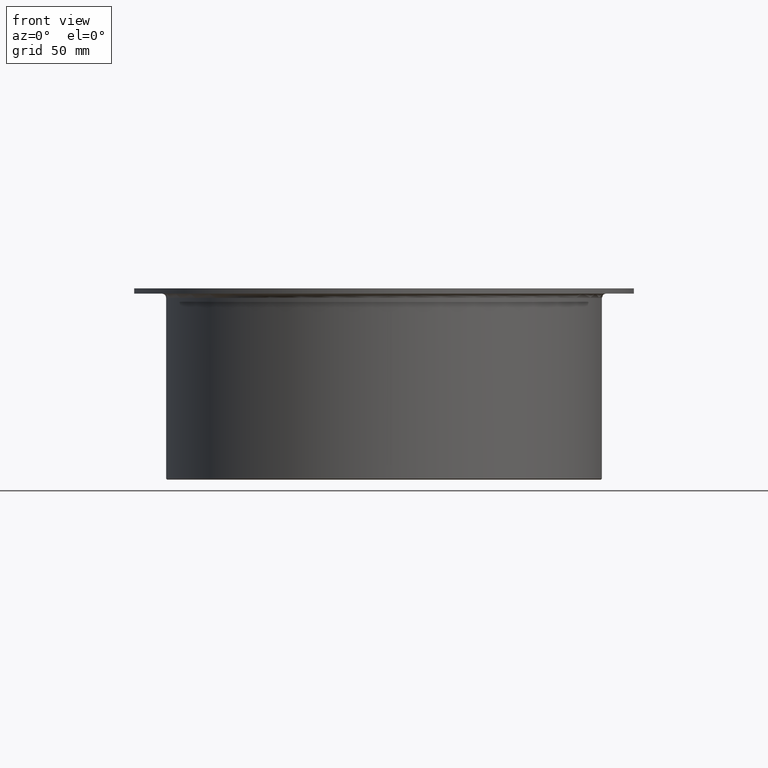
[diagram: clean part render]
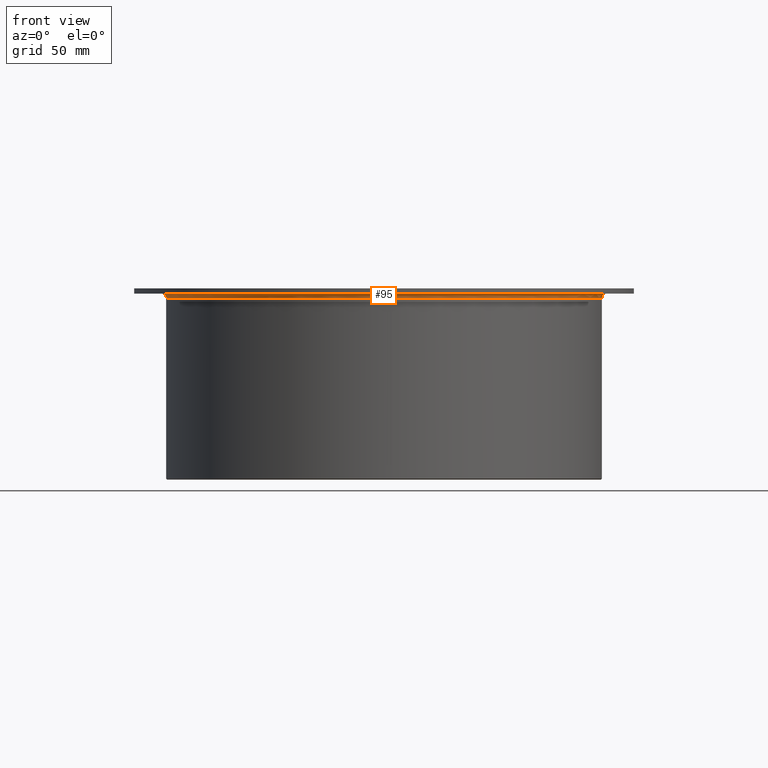
[diagram: same view with one face highlighted and labeled with its STEP entity id]
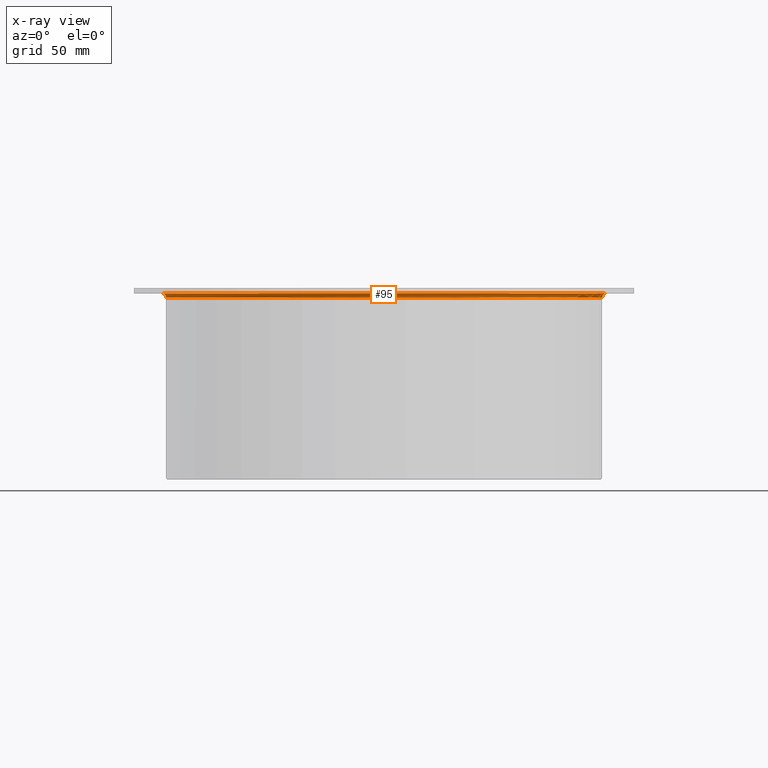
[diagram: x-ray of the same camera — body ghosted, the highlighted face saturated]
A machine part, front view. The second image highlights one B-rep face of the part: STEP entity #95.
The next image is the same camera in x-ray: the body ghosted, the highlighted face saturated — about 0% of this face is hidden behind the body in this view.
In plain terms, the highlighted toroidal blend (fillet) surface has major radius 104.5 mm and minor (blend) radius 2 mm.
Its self-contained STEP definition (entity closure, byte-faithful):
#95=ADVANCED_FACE('',(#142),#143,.F.);
#142=FACE_OUTER_BOUND('',#194,.T.);
#143=TOROIDAL_SURFACE('',#195,104.5,2.0);
#194=EDGE_LOOP('',(#360,#361,#362,#363));
#195=AXIS2_PLACEMENT_3D('',#364,#365,#366);
#360=ORIENTED_EDGE('',*,*,#436,.T.);
#361=ORIENTED_EDGE('',*,*,#470,.F.);
#362=ORIENTED_EDGE('',*,*,#471,.T.);
#363=ORIENTED_EDGE('',*,*,#428,.T.);
#364=CARTESIAN_POINT('',(2.22044604925031E-015,-3.71059565656411E-015,85.5));
#365=DIRECTION('',(-1.16269284789061E-031,-6.12323399573677E-017,1.0));
#366=DIRECTION('',(-1.0,1.89882151931499E-015,0.0));
#428=EDGE_CURVE('',#507,#505,#508,.T.);
#436=EDGE_CURVE('',#505,#520,#521,.T.);
#470=EDGE_CURVE('',#570,#520,#572,.T.);
#471=EDGE_CURVE('',#570,#507,#573,.T.);
#505=VERTEX_POINT('',#617);
#507=VERTEX_POINT('',#620);
#508=CIRCLE('',#621,102.5);
#520=VERTEX_POINT('',#649);
#521=CIRCLE('',#650,2.0);
#570=VERTEX_POINT('',#755);
#572=CIRCLE('',#758,104.5);
#573=B_SPLINE_CURVE_WITH_KNOTS('',3,(#759,#760,#761,#762,#763,#764,#765,#766,#767,#768,#769,#770,#771,#772),.UNSPECIFIED.,.F.,.F.,(4,2,2,2,2,2,4),(0.222831549806843,0.298249864521166,0.373687788760013,0.448602581092316,0.52286140491384,0.596569437734995,0.670277470556151),.UNSPECIFIED.);
#617=CARTESIAN_POINT('',(102.5,-2.1089243107761E-013,85.5));
#620=CARTESIAN_POINT('',(-102.421234679189,-4.0175473600821,85.5));
#621=AXIS2_PLACEMENT_3D('',#807,#808,#809);
#649=CARTESIAN_POINT('',(104.5,-2.15057468155985E-013,87.5));
#650=AXIS2_PLACEMENT_3D('',#822,#823,#824);
#755=CARTESIAN_POINT('',(-104.405661574246,-4.43935031778063,87.5));
#758=AXIS2_PLACEMENT_3D('',#889,#890,#891);
#759=CARTESIAN_POINT('',(-105.16853480014,-4.6015040276666,87.3461862916365));
#760=CARTESIAN_POINT('',(-104.941087312273,-4.55315857168509,87.4417346701762));
#761=CARTESIAN_POINT('',(-104.65156238621,-4.49161814888352,87.5));
#762=CARTESIAN_POINT('',(-104.159696825584,-4.38706889651306,87.5));
#763=CARTESIAN_POINT('',(-103.870098250627,-4.32551281915559,87.4417110530345));
#764=CARTESIAN_POINT('',(-103.416640175531,-4.22912732985186,87.2512833349675));
#765=CARTESIAN_POINT('',(-103.17212116519,-4.17715320975085,87.0860418081511));
#766=CARTESIAN_POINT('',(-102.826691280989,-4.10372982126709,86.735984418291));
#767=CARTESIAN_POINT('',(-102.664052567778,-4.06915989559258,86.4898471885802));
#768=CARTESIAN_POINT('',(-102.478085343435,-4.02963134180291,86.0347400912187));
#769=CARTESIAN_POINT('',(-102.421234679189,-4.0175473600821,85.7456934427372));
#770=CARTESIAN_POINT('',(-102.421234679189,-4.0175473600821,85.2543065572628));
#771=CARTESIAN_POINT('',(-102.478085343435,-4.02963134180291,84.9652599087813));
#772=CARTESIAN_POINT('',(-102.570722833928,-4.04932204826387,84.7385534041586));
#807=CARTESIAN_POINT('',(-7.04575888216064E-030,-3.7105956565641E-015,85.5));
#808=DIRECTION('',(-1.16269284789061E-031,-6.12323399573677E-017,1.0));
#809=DIRECTION('',(-1.0,1.87715863181855E-015,-1.32646929163974E-033));
#822=CARTESIAN_POINT('',(104.5,-2.1493500347607E-013,85.5));
#823=DIRECTION('',(2.02128619922972E-015,1.0,6.12323399573677E-017));
#824=DIRECTION('',(1.0,-2.02128619922972E-015,-7.49879891330928E-033));
#889=CARTESIAN_POINT('',(-7.04575888216064E-030,-3.7105956565641E-015,87.5));
#890=DIRECTION('',(-1.16269284789061E-031,-6.12323399573677E-017,1.0));
#891=DIRECTION('',(-1.0,1.87715863181855E-015,-1.32646929163974E-033));